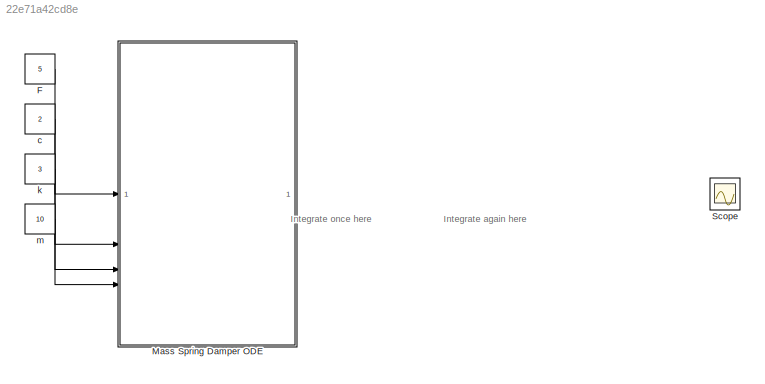
MODEL slx_22e71a42cd8e
KIND model
CONFIG AbsTol = auto
CONFIG EnableMultiTasking = off
CONFIG FixedStep = auto
CONFIG MaxStep = auto
CONFIG MinStep = auto
CONFIG RelTol = 1e-6
CONFIG SampleTimeConstraint = Unconstrained
CONFIG SolverName = VariableStepAuto
CONFIG StartTime = 0.0
CONFIG StopTime = 50
BLOCK [Constant] F
  Value = 5
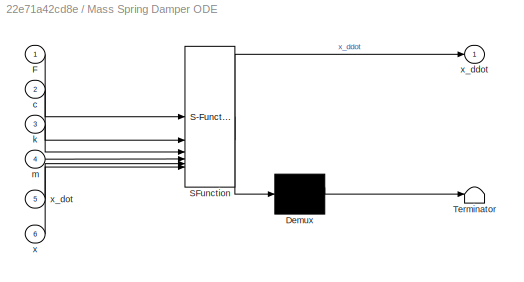
BLOCK [SubSystem] Mass Spring Damper ODE
  ErrorFcn = Stateflow.Translate.translate
  PermitHierarchicalResolution = ExplicitOnly
  SFBlockType = MATLAB Function
  TreatAsAtomicUnit = on
BLOCK [Demux] Mass Spring Damper ODE/ Demux 
  Outputs = 1
BLOCK [S-Function] Mass Spring Damper ODE/ SFunction 
  EnableBusSupport = off
  FunctionName = sf_sfun
  PortCounts = [6 2]
  SFcnIsStateOwnerBlock = off
  SFunctionDeploymentMode = off
  Tag = Stateflow S-Function 2
BLOCK [Terminator] Mass Spring Damper ODE/ Terminator 
BLOCK [Inport] Mass Spring Damper ODE/F
BLOCK [Inport] Mass Spring Damper ODE/c
  Port = 2
BLOCK [Inport] Mass Spring Damper ODE/k
  Port = 3
BLOCK [Inport] Mass Spring Damper ODE/m
  Port = 4
BLOCK [Inport] Mass Spring Damper ODE/x
  Port = 6
BLOCK [Outport] Mass Spring Damper ODE/x_ddot
BLOCK [Inport] Mass Spring Damper ODE/x_dot
  Port = 5
BLOCK [Scope] Scope
  ActiveDisplayYMaximum = 2.9154393189015977
  ActiveDisplayYMinimum = -0.32393770210017747
  Floating = off
  GraphicalSettings = {"Style":{"BackgroundColor":[0.12941176470588237,0.12941176470588237,0.12941176470588237],"AxesColor":[0.07058823529411765,0.07058823529411765,0.07058823529411765],"LabelsColor":[0.8509803921568627,0.8509803921568627,0.8509803921568627],"PreserveColors":false,"Visible":[true],"LineStyle":["-"],"LineWidth":[1.5],"BarWidth":[0.9],"LineColor":["auto"],"LineFaceAlpha":[1],"LineEdgeAlpha":[1],"Marker":...<+1922ch>
  MultipleDisplayCache = [{"MaxYLimMag":2.9154393189015977,"MaxYLimReal":2.9154393189015977,"MinYLimMag":0,"MinYLimReal":-0.32393770210017747,"PlotAsMagnitudePhase":false,"ShowGrid":true,"ShowLegend":false,"Title":"%<SignalLabel>","YLabel":""}]
  NumInputPorts = 1
  ScopeFrameLocation = window
  WasSavedAsWebScope = on
  WindowPosition = [680.000000,330.000000,560.000000,420.000000,]
BLOCK [Constant] c
  Value = 2
BLOCK [Constant] k
  Value = 3
BLOCK [Constant] m
  Value = 10
ANNOTATION (root): Integrate again here
ANNOTATION (root): Integrate once here
LINE F:1 -> Mass Spring Damper ODE:1
LINE c:1 -> Mass Spring Damper ODE:2
LINE k:1 -> Mass Spring Damper ODE:3
LINE m:1 -> Mass Spring Damper ODE:4
CHART Mass Spring Damper ODE states=1 transitions=1
  STATE_LABEL 'eML_blk_kernel()'
  STATE_LABEL 'SCRIPT:\nfunction x_ddot = fcn(F,c,k,m,x_dot,x)\n\n   % Write your expression for x_ddot here in terms of the inputs\n   x_ddot = -(-F+c.*x_dot+k.*x)./m;\nend\n\n'
CHART  states=0 transitions=0
